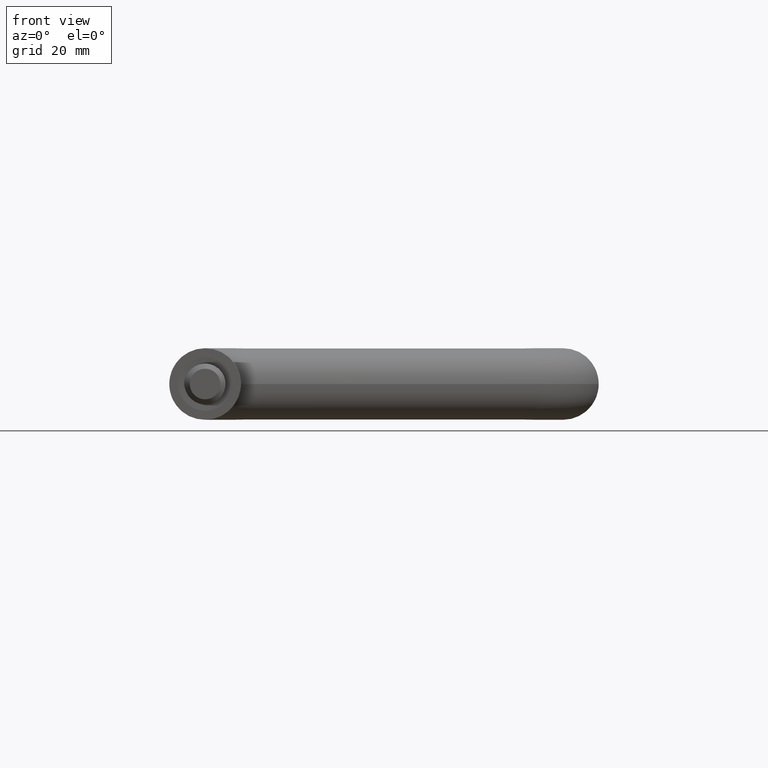
[diagram: clean part render]
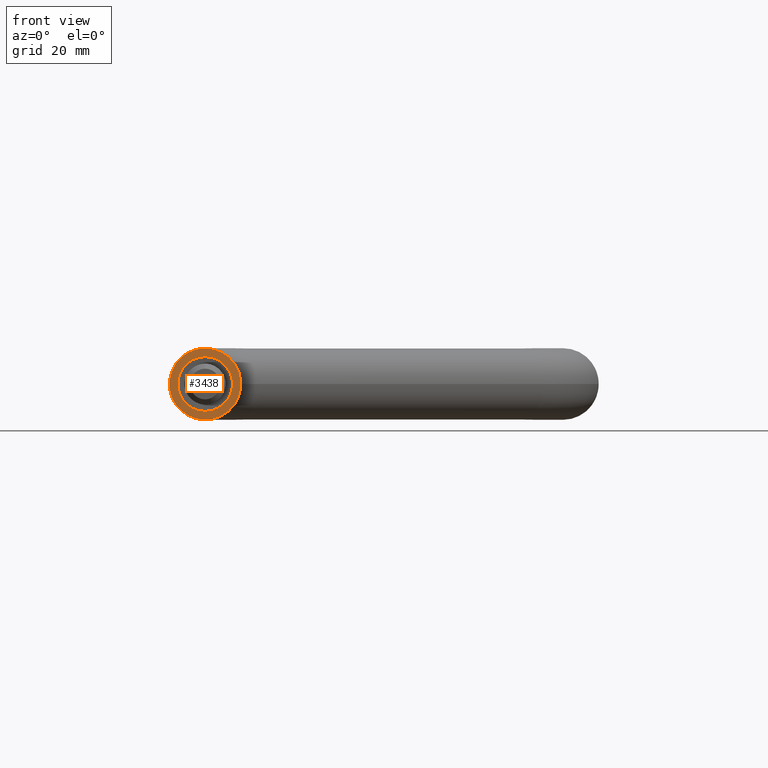
[diagram: same view with one face highlighted and labeled with its STEP entity id]
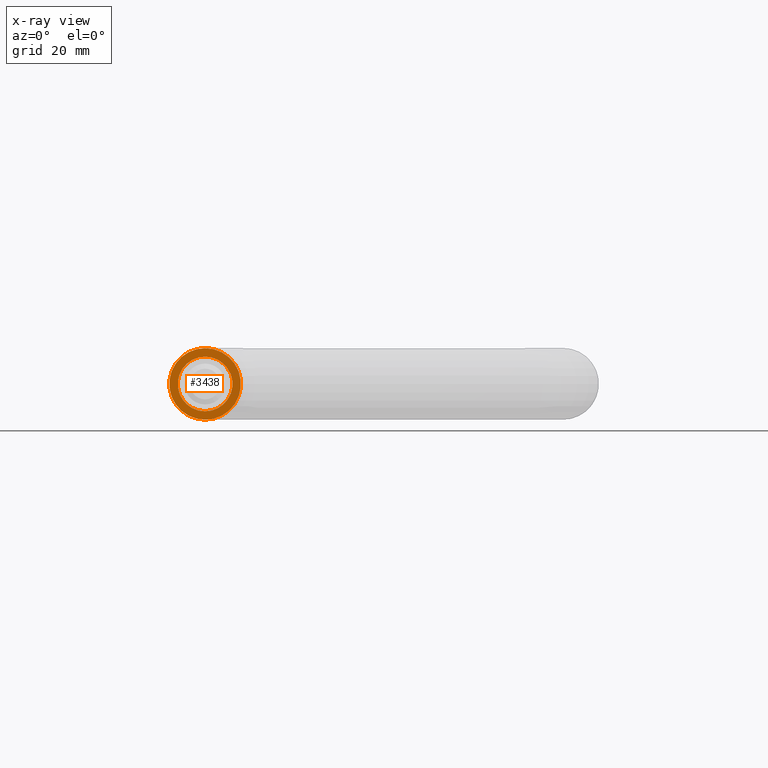
[diagram: x-ray of the same camera — body ghosted, the highlighted face saturated]
A machine part, front view. The second image highlights one B-rep face of the part: STEP entity #3438.
The next image is the same camera in x-ray: the body ghosted, the highlighted face saturated — about 0% of this face is hidden behind the body in this view.
In plain terms, the highlighted planar face has unit normal (0, 1, 0).
Its self-contained STEP definition (entity closure, byte-faithful):
#183 = VERTEX_POINT ( 'NONE', #10288 ) ;
#341 = CARTESIAN_POINT ( 'NONE',  ( 0.0000000000000000000, 0.0000000000000000000, -5.349999999999999600 ) ) ;
#899 = CARTESIAN_POINT ( 'NONE',  ( 0.0000000000000000000, 0.0000000000000000000, 0.0000000000000000000 ) ) ;
#1465 = CIRCLE ( 'NONE', #13089, 5.349999999999999600 ) ;
#1655 = EDGE_CURVE ( 'NONE', #7523, #183, #2221, .T. ) ;
#1809 = CARTESIAN_POINT ( 'NONE',  ( 0.0000000000000000000, 0.0000000000000000000, 0.0000000000000000000 ) ) ;
#1835 = VERTEX_POINT ( 'NONE', #341 ) ;
#2102 = ORIENTED_EDGE ( 'NONE', *, *, #3746, .F. ) ;
#2221 = CIRCLE ( 'NONE', #4581, 7.000000000000000000 ) ;
#2689 = FACE_OUTER_BOUND ( 'NONE', #8403, .T. ) ;
#3438 = ADVANCED_FACE ( 'NONE', ( #14189, #2689 ), #4169, .F. ) ;
#3746 = EDGE_CURVE ( 'NONE', #1835, #7921, #9704, .T. ) ;
#4169 = PLANE ( 'NONE',  #10949 ) ;
#4360 = EDGE_CURVE ( 'NONE', #7921, #1835, #1465, .T. ) ;
#4561 = DIRECTION ( 'NONE',  ( 0.0000000000000000000, 1.000000000000000000, 0.0000000000000000000 ) ) ;
#4566 = CARTESIAN_POINT ( 'NONE',  ( 0.0000000000000000000, 0.0000000000000000000, 0.0000000000000000000 ) ) ;
#4581 = AXIS2_PLACEMENT_3D ( 'NONE', #10305, #4561, #4753 ) ;
#4753 = DIRECTION ( 'NONE',  ( 0.0000000000000000000, 0.0000000000000000000, 1.000000000000000000 ) ) ;
#6261 = DIRECTION ( 'NONE',  ( 0.0000000000000000000, -0.0000000000000000000, 1.000000000000000000 ) ) ;
#6346 = EDGE_LOOP ( 'NONE', ( #2102, #8230 ) ) ;
#6631 = DIRECTION ( 'NONE',  ( 0.0000000000000000000, -1.000000000000000000, 0.0000000000000000000 ) ) ;
#7492 = DIRECTION ( 'NONE',  ( 0.0000000000000000000, 1.000000000000000000, 0.0000000000000000000 ) ) ;
#7523 = VERTEX_POINT ( 'NONE', #11326 ) ;
#7921 = VERTEX_POINT ( 'NONE', #8061 ) ;
#8061 = CARTESIAN_POINT ( 'NONE',  ( 6.551860375438339700E-016, 0.0000000000000000000, 5.349999999999999600 ) ) ;
#8162 = AXIS2_PLACEMENT_3D ( 'NONE', #899, #6631, #13101 ) ;
#8230 = ORIENTED_EDGE ( 'NONE', *, *, #4360, .F. ) ;
#8403 = EDGE_LOOP ( 'NONE', ( #11564, #11419 ) ) ;
#9612 = DIRECTION ( 'NONE',  ( 0.0000000000000000000, 0.0000000000000000000, -1.000000000000000000 ) ) ;
#9704 = CIRCLE ( 'NONE', #8162, 5.349999999999999600 ) ;
#10029 = DIRECTION ( 'NONE',  ( 0.0000000000000000000, 0.0000000000000000000, 1.000000000000000000 ) ) ;
#10115 = DIRECTION ( 'NONE',  ( 0.0000000000000000000, 1.000000000000000000, 0.0000000000000000000 ) ) ;
#10288 = CARTESIAN_POINT ( 'NONE',  ( 8.572527594031473200E-016, 0.0000000000000000000, 7.000000000000000000 ) ) ;
#10305 = CARTESIAN_POINT ( 'NONE',  ( 0.0000000000000000000, 0.0000000000000000000, 0.0000000000000000000 ) ) ;
#10926 = EDGE_CURVE ( 'NONE', #183, #7523, #14435, .T. ) ;
#10949 = AXIS2_PLACEMENT_3D ( 'NONE', #14034, #7492, #6261 ) ;
#11326 = CARTESIAN_POINT ( 'NONE',  ( 0.0000000000000000000, 0.0000000000000000000, -7.000000000000000000 ) ) ;
#11419 = ORIENTED_EDGE ( 'NONE', *, *, #10926, .F. ) ;
#11564 = ORIENTED_EDGE ( 'NONE', *, *, #1655, .F. ) ;
#11681 = AXIS2_PLACEMENT_3D ( 'NONE', #4566, #10115, #10029 ) ;
#11847 = DIRECTION ( 'NONE',  ( 0.0000000000000000000, -1.000000000000000000, 0.0000000000000000000 ) ) ;
#13089 = AXIS2_PLACEMENT_3D ( 'NONE', #1809, #11847, #9612 ) ;
#13101 = DIRECTION ( 'NONE',  ( 0.0000000000000000000, 0.0000000000000000000, -1.000000000000000000 ) ) ;
#14034 = CARTESIAN_POINT ( 'NONE',  ( 0.0000000000000000000, 0.0000000000000000000, 0.0000000000000000000 ) ) ;
#14189 = FACE_BOUND ( 'NONE', #6346, .T. ) ;
#14435 = CIRCLE ( 'NONE', #11681, 7.000000000000000000 ) ;